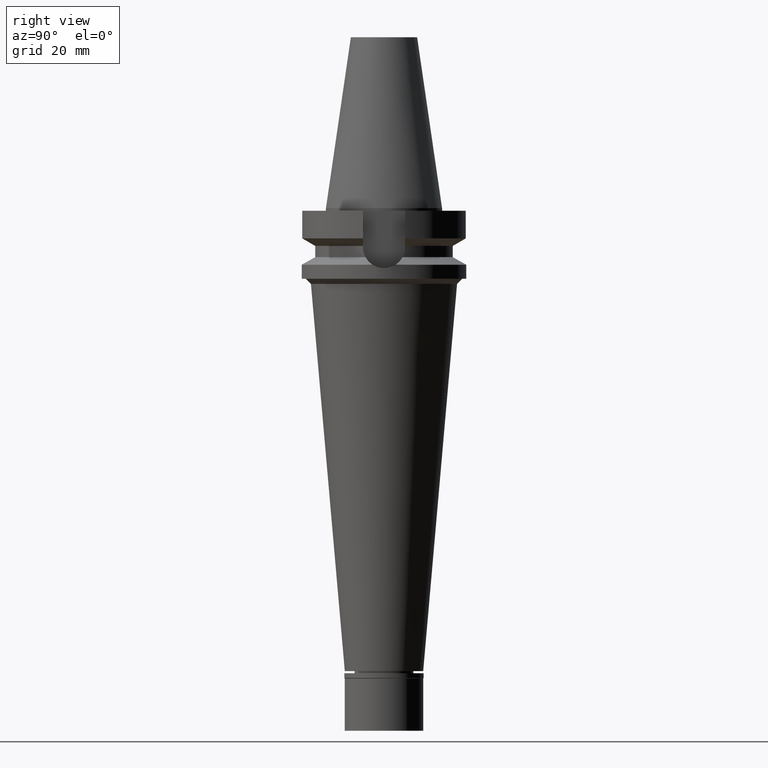
[diagram: clean part render]
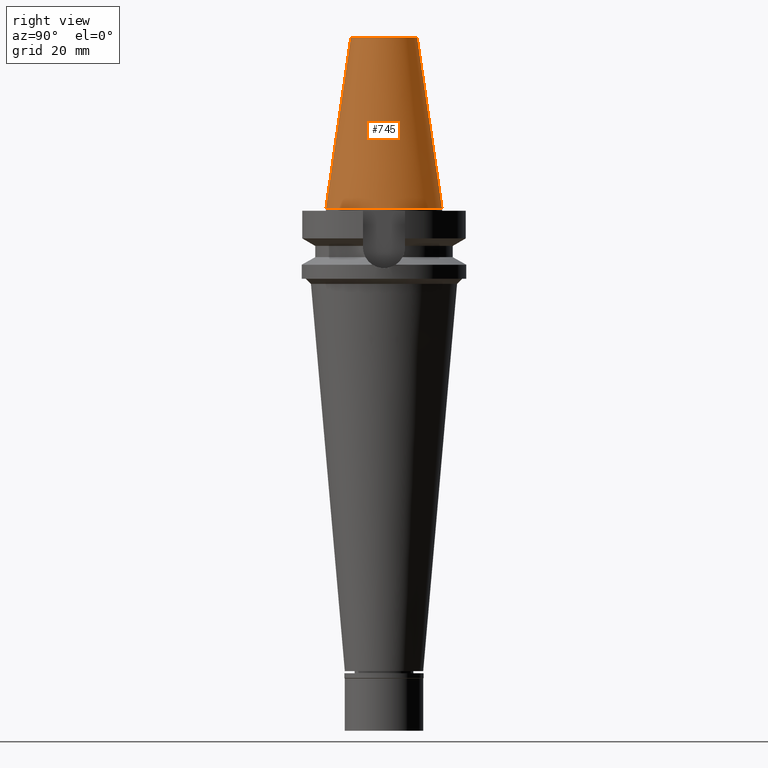
[diagram: same view with one face highlighted and labeled with its STEP entity id]
A machine part, right view. The second image highlights one B-rep face of the part: STEP entity #745.
In plain terms, the highlighted conical surface has half-angle 8.297 deg.
Its self-contained STEP definition (entity closure, byte-faithful):
#1 = DIRECTION ( 'NONE',  ( 0.0000000000000000000, 1.000000000000000000, 0.0000000000000000000 ) ) ;
#15 = CARTESIAN_POINT ( 'NONE',  ( 0.0000000000000000000, 22.22500000000000142, 9.237055564880999494E-14 ) ) ;
#191 = VERTEX_POINT ( 'NONE', #2648 ) ;
#258 = ORIENTED_EDGE ( 'NONE', *, *, #1509, .F. ) ;
#502 = FACE_OUTER_BOUND ( 'NONE', #722, .T. ) ;
#609 = CARTESIAN_POINT ( 'NONE',  ( 0.0000000000000000000, 1.625106302469000024E-14, 1.136868377215999875E-13 ) ) ;
#614 = VERTEX_POINT ( 'NONE', #15 ) ;
#715 = EDGE_CURVE ( 'NONE', #1560, #1234, #2320, .T. ) ;
#718 = LINE ( 'NONE', #961, #2117 ) ;
#722 = EDGE_LOOP ( 'NONE', ( #1998, #2712, #258, #1843 ) ) ;
#745 = ADVANCED_FACE ( 'NONE', ( #502 ), #1307, .T. ) ;
#847 = AXIS2_PLACEMENT_3D ( 'NONE', #2896, #2176, #1 ) ;
#881 = DIRECTION ( 'NONE',  ( 0.0000000000000000000, 0.1443043893539925626, -0.9895333461855498891 ) ) ;
#955 = VECTOR ( 'NONE', #881, 1000.000000000000114 ) ;
#961 = CARTESIAN_POINT ( 'NONE',  ( 0.0000000000000000000, -12.68766899429999917, 65.40000000000000568 ) ) ;
#964 = CARTESIAN_POINT ( 'NONE',  ( 0.0000000000000000000, -12.68766899429999917, 65.40000000000000568 ) ) ;
#1169 = CARTESIAN_POINT ( 'NONE',  ( 0.0000000000000000000, 12.68766899429999917, 65.40000000000000568 ) ) ;
#1234 = VERTEX_POINT ( 'NONE', #964 ) ;
#1307 = CONICAL_SURFACE ( 'NONE', #2927, 17.45633449714999941, 0.1448099680379422438 ) ;
#1509 = EDGE_CURVE ( 'NONE', #614, #191, #3126, .T. ) ;
#1555 = EDGE_CURVE ( 'NONE', #1560, #614, #2571, .T. ) ;
#1560 = VERTEX_POINT ( 'NONE', #2820 ) ;
#1581 = DIRECTION ( 'NONE',  ( 0.0000000000000000000, 0.0000000000000000000, -1.000000000000000000 ) ) ;
#1592 = EDGE_CURVE ( 'NONE', #1234, #191, #718, .T. ) ;
#1694 = CARTESIAN_POINT ( 'NONE',  ( 0.0000000000000000000, 1.625106302469000024E-14, 32.70000000000000284 ) ) ;
#1763 = AXIS2_PLACEMENT_3D ( 'NONE', #609, #1581, #3091 ) ;
#1843 = ORIENTED_EDGE ( 'NONE', *, *, #1555, .F. ) ;
#1916 = DIRECTION ( 'NONE',  ( 0.0000000000000000000, -0.1443043893539925626, -0.9895333461855498891 ) ) ;
#1998 = ORIENTED_EDGE ( 'NONE', *, *, #715, .T. ) ;
#2117 = VECTOR ( 'NONE', #1916, 1000.000000000000114 ) ;
#2176 = DIRECTION ( 'NONE',  ( 0.0000000000000000000, 0.0000000000000000000, -1.000000000000000000 ) ) ;
#2320 = CIRCLE ( 'NONE', #847, 12.68766899429999917 ) ;
#2440 = DIRECTION ( 'NONE',  ( 0.0000000000000000000, -1.000000000000000000, 0.0000000000000000000 ) ) ;
#2571 = LINE ( 'NONE', #1169, #955 ) ;
#2648 = CARTESIAN_POINT ( 'NONE',  ( 0.0000000000000000000, -22.22500000000000142, 9.237055564880999494E-14 ) ) ;
#2668 = DIRECTION ( 'NONE',  ( 0.0000000000000000000, 0.0000000000000000000, -1.000000000000000000 ) ) ;
#2712 = ORIENTED_EDGE ( 'NONE', *, *, #1592, .T. ) ;
#2820 = CARTESIAN_POINT ( 'NONE',  ( 0.0000000000000000000, 12.68766899429999917, 65.40000000000000568 ) ) ;
#2896 = CARTESIAN_POINT ( 'NONE',  ( 0.0000000000000000000, 1.625106302469000024E-14, 65.40000000000000568 ) ) ;
#2927 = AXIS2_PLACEMENT_3D ( 'NONE', #1694, #2668, #2440 ) ;
#3091 = DIRECTION ( 'NONE',  ( 0.0000000000000000000, 1.000000000000000000, 0.0000000000000000000 ) ) ;
#3126 = CIRCLE ( 'NONE', #1763, 22.22500000000000142 ) ;